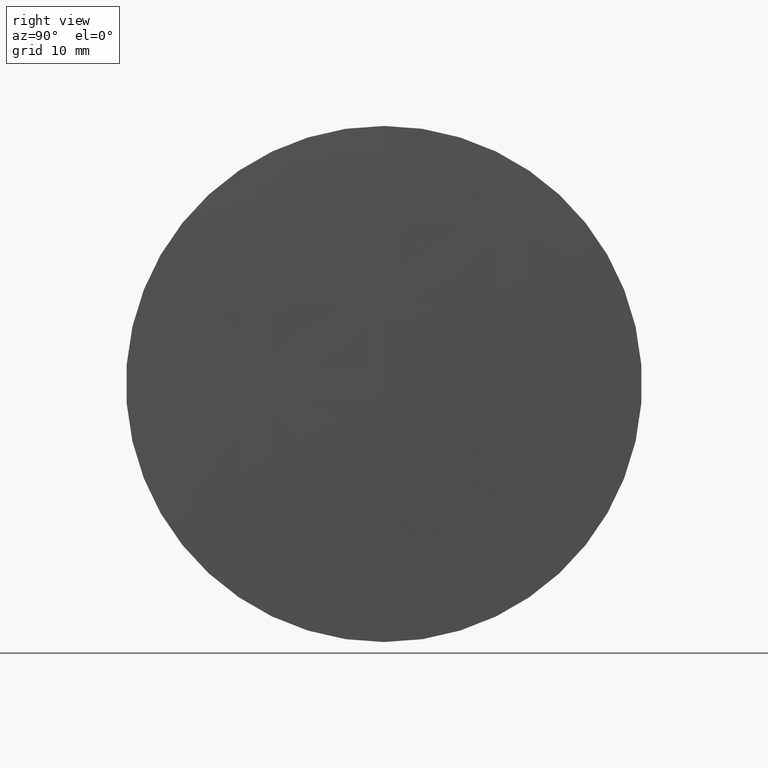
[diagram: clean part render]
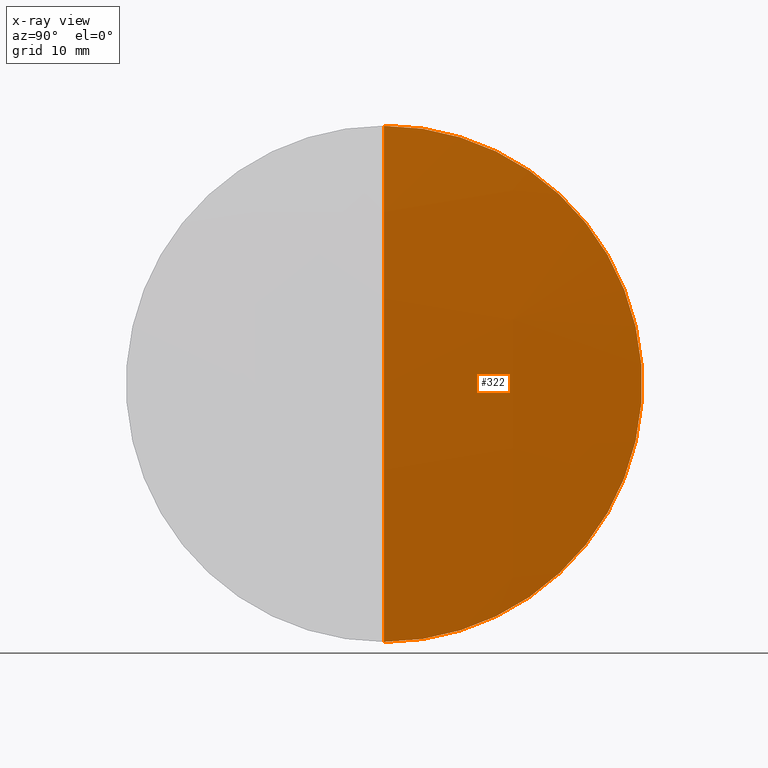
[diagram: x-ray — body ghosted, one internal face saturated and labeled with its STEP entity id]
A machine part, right view, then the same camera in x-ray: the body is ghosted and one INTERNAL B-rep face — a face not visible from any outside direction — is saturated and labeled: STEP entity #322.
In plain terms, the highlighted spherical surface has radius 398.1 mm.
Its self-contained STEP definition (entity closure, byte-faithful):
#1 = DIRECTION ( 'NONE',  ( 0.0000000000000000000, 0.0000000000000000000, -1.000000000000000000 ) ) ;
#10 = CIRCLE ( 'NONE', #313, 398.1000000000000200 ) ;
#12 = ORIENTED_EDGE ( 'NONE', *, *, #269, .F. ) ;
#24 = CARTESIAN_POINT ( 'NONE',  ( 216.1215759061234400, 0.0000000000000000000, 8.672359698865987600E-014 ) ) ;
#47 = DIRECTION ( 'NONE',  ( 0.0000000000000000000, 0.0000000000000000000, 1.000000000000000000 ) ) ;
#49 = CARTESIAN_POINT ( 'NONE',  ( 614.2215759061234600, 0.0000000000000000000, 1.111001915256879400E-013 ) ) ;
#53 = VERTEX_POINT ( 'NONE', #299 ) ;
#58 = AXIS2_PLACEMENT_3D ( 'NONE', #73, #234, #47 ) ;
#70 = DIRECTION ( 'NONE',  ( -0.0000000000000000000, 1.000000000000000000, 1.224646799147353200E-016 ) ) ;
#73 = CARTESIAN_POINT ( 'NONE',  ( 613.4104506559709800, 0.0000000000000000000, 0.0000000000000000000 ) ) ;
#76 = DIRECTION ( 'NONE',  ( 0.0000000000000000000, 1.000000000000000000, 0.0000000000000000000 ) ) ;
#102 = AXIS2_PLACEMENT_3D ( 'NONE', #24, #181, #1 ) ;
#104 = FACE_OUTER_BOUND ( 'NONE', #296, .T. ) ;
#121 = CARTESIAN_POINT ( 'NONE',  ( 216.1215759061234400, 0.0000000000000000000, 8.672359698865987600E-014 ) ) ;
#128 = CIRCLE ( 'NONE', #58, 25.39999999999921700 ) ;
#136 = ORIENTED_EDGE ( 'NONE', *, *, #199, .T. ) ;
#145 = EDGE_CURVE ( 'NONE', #174, #215, #147, .T. ) ;
#147 = CIRCLE ( 'NONE', #102, 398.1000000000000200 ) ;
#174 = VERTEX_POINT ( 'NONE', #49 ) ;
#179 = AXIS2_PLACEMENT_3D ( 'NONE', #121, #76, #340 ) ;
#181 = DIRECTION ( 'NONE',  ( 0.0000000000000000000, -1.000000000000000000, 0.0000000000000000000 ) ) ;
#199 = EDGE_CURVE ( 'NONE', #174, #53, #10, .T. ) ;
#215 = VERTEX_POINT ( 'NONE', #342 ) ;
#232 = DIRECTION ( 'NONE',  ( 0.0000000000000000000, -1.224646799147353200E-016, 1.000000000000000000 ) ) ;
#234 = DIRECTION ( 'NONE',  ( -1.000000000000000000, -0.0000000000000000000, -0.0000000000000000000 ) ) ;
#260 = CARTESIAN_POINT ( 'NONE',  ( 216.1215759061234400, 0.0000000000000000000, 8.672359698865987600E-014 ) ) ;
#269 = EDGE_CURVE ( 'NONE', #215, #53, #128, .T. ) ;
#278 = ORIENTED_EDGE ( 'NONE', *, *, #145, .F. ) ;
#296 = EDGE_LOOP ( 'NONE', ( #278, #136, #12 ) ) ;
#299 = CARTESIAN_POINT ( 'NONE',  ( 613.4104506559709800, 3.110602869834181400E-015, -25.39999999999921700 ) ) ;
#305 = SPHERICAL_SURFACE ( 'NONE', #179, 398.1000000000000200 ) ;
#313 = AXIS2_PLACEMENT_3D ( 'NONE', #260, #70, #232 ) ;
#322 = ADVANCED_FACE ( 'NONE', ( #104 ), #305, .T. ) ;
#340 = DIRECTION ( 'NONE',  ( 0.0000000000000000000, 0.0000000000000000000, 1.000000000000000000 ) ) ;
#342 = CARTESIAN_POINT ( 'NONE',  ( 613.4104506559709800, 0.0000000000000000000, 25.39999999999921700 ) ) ;